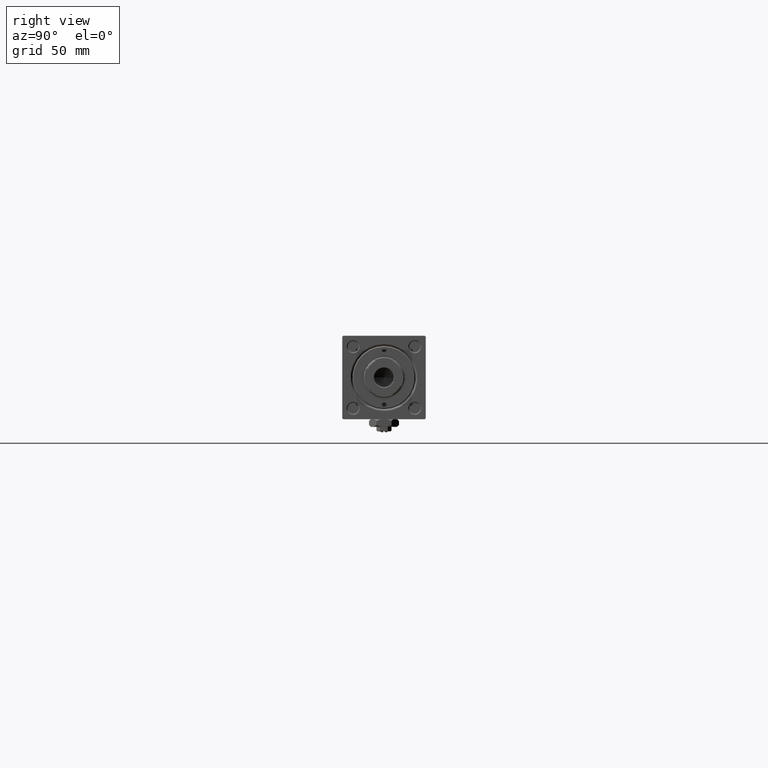
[diagram: clean part render]
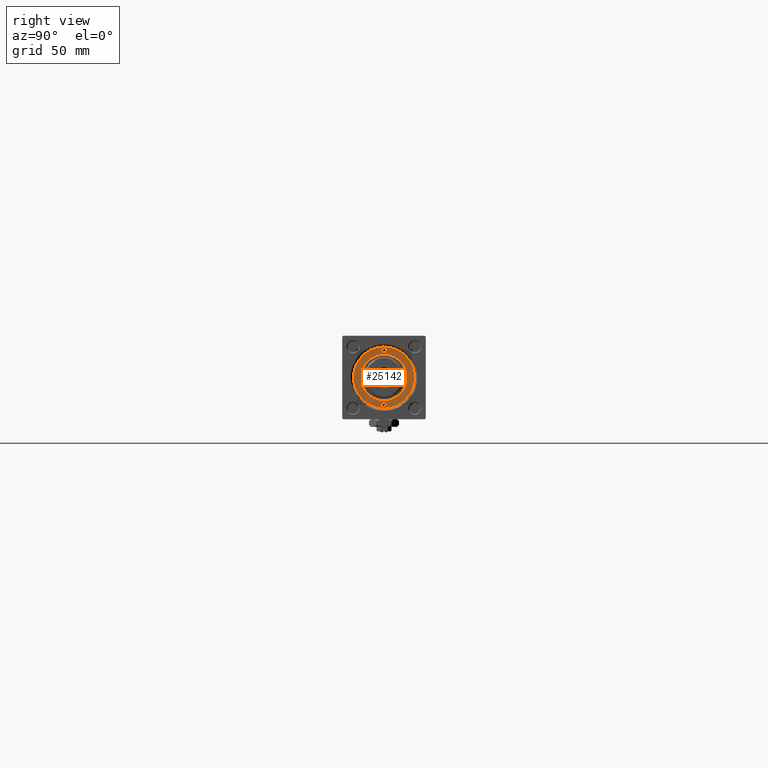
[diagram: same view with one face highlighted and labeled with its STEP entity id]
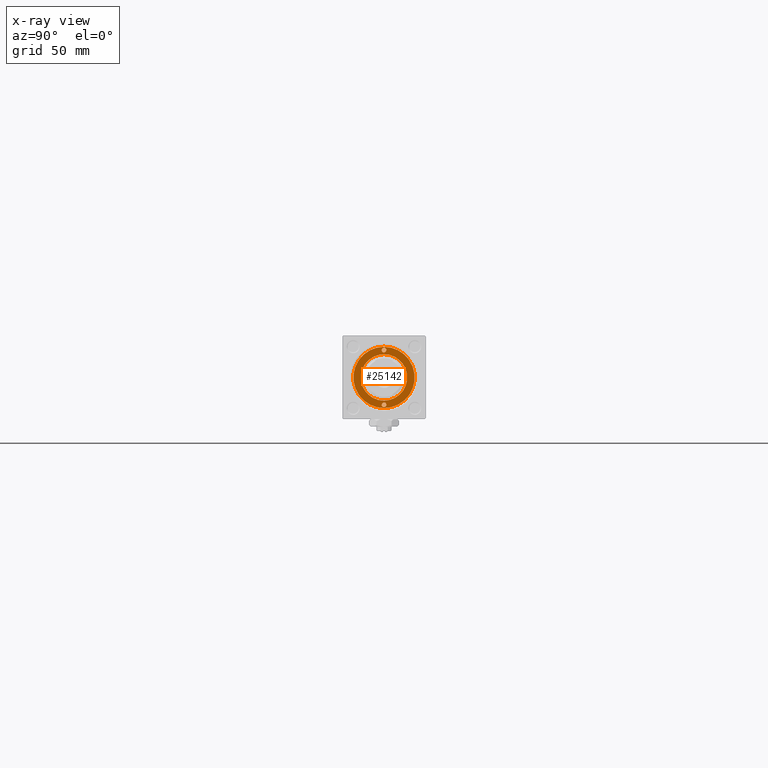
[diagram: x-ray of the same camera — body ghosted, the highlighted face saturated]
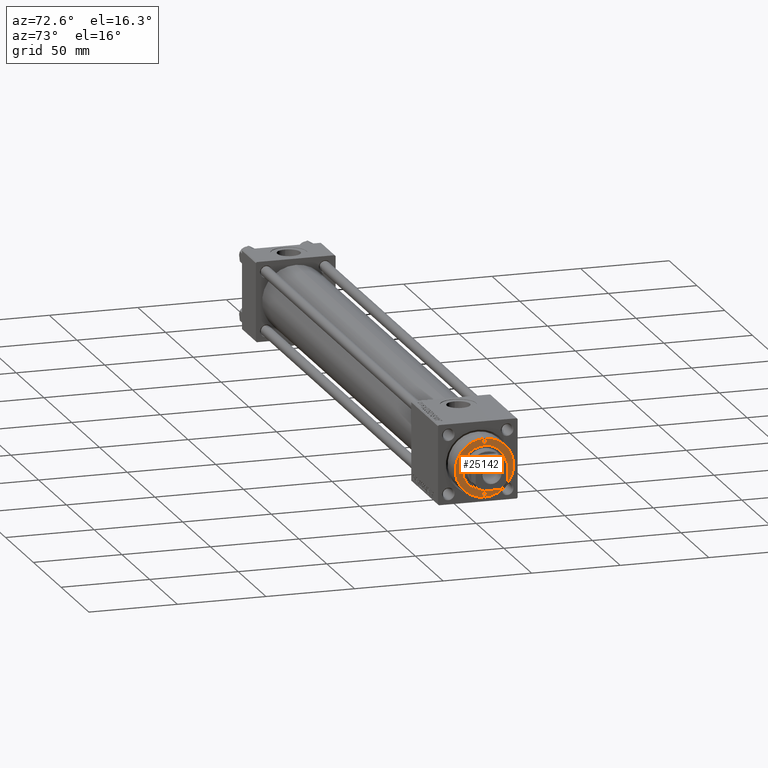
[diagram: same view with one face highlighted and labeled with its STEP entity id]
A machine part, right view. The second image highlights one B-rep face of the part: STEP entity #25142.
The next image is the same camera in x-ray: the body ghosted, the highlighted face saturated — about 0% of this face is hidden behind the body in this view.
A second angle (auxiliary view) of the same face is appended — the face is thin or edge-on in the first view.
In plain terms, the highlighted planar face has unit normal (1, 0, 0).
Its self-contained STEP definition (entity closure, byte-faithful):
#73 = CARTESIAN_POINT ( 'NONE',  ( -14.75000000000000000, 0.000000000000000000, 40.70000000000000284 ) ) ;
#2096 = CARTESIAN_POINT ( 'NONE',  ( 14.75000000000000000, 0.000000000000000000, 40.70000000000000284 ) ) ;
#2787 = CIRCLE ( 'NONE', #38217, 16.49999999999999289 ) ;
#2788 = EDGE_CURVE ( 'NONE', #33851, #29347, #13720, .T. ) ;
#3006 = EDGE_LOOP ( 'NONE', ( #29511, #47932 ) ) ;
#3411 = CIRCLE ( 'NONE', #8622, 12.50000000000000000 ) ;
#3491 = AXIS2_PLACEMENT_3D ( 'NONE', #9402, #35104, #29720 ) ;
#4316 = EDGE_CURVE ( 'NONE', #35325, #26125, #3411, .T. ) ;
#4332 = EDGE_CURVE ( 'NONE', #48650, #21894, #29367, .T. ) ;
#4599 = ORIENTED_EDGE ( 'NONE', *, *, #2788, .F. ) ;
#5380 = EDGE_LOOP ( 'NONE', ( #16659, #27107 ) ) ;
#5666 = ORIENTED_EDGE ( 'NONE', *, *, #28046, .T. ) ;
#5991 = EDGE_CURVE ( 'NONE', #17787, #49670, #20735, .T. ) ;
#8366 = DIRECTION ( 'NONE',  ( -0.000000000000000000, -0.000000000000000000, 1.000000000000000000 ) ) ;
#8622 = AXIS2_PLACEMENT_3D ( 'NONE', #29291, #41213, #16276 ) ;
#9402 = CARTESIAN_POINT ( 'NONE',  ( 0.000000000000000000, 0.000000000000000000, 40.70000000000000284 ) ) ;
#11274 = EDGE_LOOP ( 'NONE', ( #4599, #30611 ) ) ;
#12061 = PLANE ( 'NONE',  #33778 ) ;
#12643 = CARTESIAN_POINT ( 'NONE',  ( 0.000000000000000000, 0.000000000000000000, 40.70000000000000284 ) ) ;
#13720 = CIRCLE ( 'NONE', #18877, 1.250000000000001110 ) ;
#15175 = EDGE_CURVE ( 'NONE', #29347, #33851, #48640, .T. ) ;
#15443 = DIRECTION ( 'NONE',  ( 0.000000000000000000, 0.000000000000000000, 1.000000000000000000 ) ) ;
#16276 = DIRECTION ( 'NONE',  ( 1.000000000000000000, 0.000000000000000000, 0.000000000000000000 ) ) ;
#16659 = ORIENTED_EDGE ( 'NONE', *, *, #36934, .F. ) ;
#17013 = DIRECTION ( 'NONE',  ( 1.000000000000000000, 0.000000000000000000, 0.000000000000000000 ) ) ;
#17787 = VERTEX_POINT ( 'NONE', #35042 ) ;
#17837 = CARTESIAN_POINT ( 'NONE',  ( -12.50000000000000000, 1.530808498934191521E-15, 40.70000000000000284 ) ) ;
#18114 = AXIS2_PLACEMENT_3D ( 'NONE', #73, #33088, #29025 ) ;
#18637 = CARTESIAN_POINT ( 'NONE',  ( 12.50000000000000000, 0.000000000000000000, 40.70000000000000284 ) ) ;
#18877 = AXIS2_PLACEMENT_3D ( 'NONE', #2096, #51616, #52148 ) ;
#19131 = CARTESIAN_POINT ( 'NONE',  ( 13.49999999999999822, 1.530808498934192803E-16, 40.70000000000000284 ) ) ;
#19387 = DIRECTION ( 'NONE',  ( 1.000000000000000000, 0.000000000000000000, -0.000000000000000000 ) ) ;
#20735 = CIRCLE ( 'NONE', #3491, 16.49999999999999289 ) ;
#21894 = VERTEX_POINT ( 'NONE', #47601 ) ;
#24887 = ORIENTED_EDGE ( 'NONE', *, *, #5991, .T. ) ;
#25142 = ADVANCED_FACE ( 'NONE', ( #53475, #27501, #28042, #41050 ), #12061, .T. ) ;
#25677 = CARTESIAN_POINT ( 'NONE',  ( 14.75000000000000000, 0.000000000000000000, 40.70000000000000284 ) ) ;
#26125 = VERTEX_POINT ( 'NONE', #18637 ) ;
#27107 = ORIENTED_EDGE ( 'NONE', *, *, #4332, .F. ) ;
#27501 = FACE_BOUND ( 'NONE', #11274, .T. ) ;
#28042 = FACE_BOUND ( 'NONE', #3006, .T. ) ;
#28046 = EDGE_CURVE ( 'NONE', #49670, #17787, #2787, .T. ) ;
#28300 = DIRECTION ( 'NONE',  ( 0.000000000000000000, 0.000000000000000000, 1.000000000000000000 ) ) ;
#29025 = DIRECTION ( 'NONE',  ( 1.000000000000000000, 0.000000000000000000, 0.000000000000000000 ) ) ;
#29162 = DIRECTION ( 'NONE',  ( 1.000000000000000000, 0.000000000000000000, 0.000000000000000000 ) ) ;
#29291 = CARTESIAN_POINT ( 'NONE',  ( 0.000000000000000000, 0.000000000000000000, 40.70000000000000284 ) ) ;
#29347 = VERTEX_POINT ( 'NONE', #19131 ) ;
#29367 = CIRCLE ( 'NONE', #18114, 1.249999999999999334 ) ;
#29489 = DIRECTION ( 'NONE',  ( 1.000000000000000000, 0.000000000000000000, 0.000000000000000000 ) ) ;
#29511 = ORIENTED_EDGE ( 'NONE', *, *, #38541, .F. ) ;
#29720 = DIRECTION ( 'NONE',  ( 1.000000000000000000, 0.000000000000000000, 0.000000000000000000 ) ) ;
#29831 = CARTESIAN_POINT ( 'NONE',  ( 16.49999999999999289, 2.051283388571816493E-15, 40.70000000000000284 ) ) ;
#30611 = ORIENTED_EDGE ( 'NONE', *, *, #15175, .F. ) ;
#32914 = CARTESIAN_POINT ( 'NONE',  ( 0.000000000000000000, 0.000000000000000000, 40.70000000000000284 ) ) ;
#33088 = DIRECTION ( 'NONE',  ( -0.000000000000000000, -0.000000000000000000, 1.000000000000000000 ) ) ;
#33778 = AXIS2_PLACEMENT_3D ( 'NONE', #32914, #28300, #19387 ) ;
#33827 = CARTESIAN_POINT ( 'NONE',  ( 16.00000000000000000, 0.000000000000000000, 40.70000000000000284 ) ) ;
#33851 = VERTEX_POINT ( 'NONE', #33827 ) ;
#35042 = CARTESIAN_POINT ( 'NONE',  ( -16.49999999999999289, 0.000000000000000000, 40.70000000000000284 ) ) ;
#35104 = DIRECTION ( 'NONE',  ( 0.000000000000000000, 0.000000000000000000, 1.000000000000000000 ) ) ;
#35325 = VERTEX_POINT ( 'NONE', #17837 ) ;
#36538 = AXIS2_PLACEMENT_3D ( 'NONE', #25677, #50858, #29489 ) ;
#36934 = EDGE_CURVE ( 'NONE', #21894, #48650, #39293, .T. ) ;
#37599 = CARTESIAN_POINT ( 'NONE',  ( -14.75000000000000000, 0.000000000000000000, 40.70000000000000284 ) ) ;
#38217 = AXIS2_PLACEMENT_3D ( 'NONE', #52295, #15443, #52816 ) ;
#38541 = EDGE_CURVE ( 'NONE', #26125, #35325, #52308, .T. ) ;
#39293 = CIRCLE ( 'NONE', #44467, 1.249999999999999334 ) ;
#41050 = FACE_OUTER_BOUND ( 'NONE', #47146, .T. ) ;
#41213 = DIRECTION ( 'NONE',  ( 0.000000000000000000, 0.000000000000000000, 1.000000000000000000 ) ) ;
#41626 = DIRECTION ( 'NONE',  ( 0.000000000000000000, 0.000000000000000000, 1.000000000000000000 ) ) ;
#43699 = AXIS2_PLACEMENT_3D ( 'NONE', #12643, #41626, #29162 ) ;
#44467 = AXIS2_PLACEMENT_3D ( 'NONE', #37599, #8366, #17013 ) ;
#47146 = EDGE_LOOP ( 'NONE', ( #24887, #5666 ) ) ;
#47601 = CARTESIAN_POINT ( 'NONE',  ( -13.50000000000000000, 0.000000000000000000, 40.70000000000000284 ) ) ;
#47932 = ORIENTED_EDGE ( 'NONE', *, *, #4316, .F. ) ;
#48640 = CIRCLE ( 'NONE', #36538, 1.250000000000001110 ) ;
#48650 = VERTEX_POINT ( 'NONE', #52504 ) ;
#49670 = VERTEX_POINT ( 'NONE', #29831 ) ;
#50858 = DIRECTION ( 'NONE',  ( -0.000000000000000000, -0.000000000000000000, 1.000000000000000000 ) ) ;
#51616 = DIRECTION ( 'NONE',  ( -0.000000000000000000, -0.000000000000000000, 1.000000000000000000 ) ) ;
#52148 = DIRECTION ( 'NONE',  ( 1.000000000000000000, 0.000000000000000000, 0.000000000000000000 ) ) ;
#52295 = CARTESIAN_POINT ( 'NONE',  ( 0.000000000000000000, 0.000000000000000000, 40.70000000000000284 ) ) ;
#52308 = CIRCLE ( 'NONE', #43699, 12.50000000000000000 ) ;
#52504 = CARTESIAN_POINT ( 'NONE',  ( -16.00000000000000000, 1.530808498934190585E-16, 40.70000000000000284 ) ) ;
#52816 = DIRECTION ( 'NONE',  ( 1.000000000000000000, 0.000000000000000000, 0.000000000000000000 ) ) ;
#53475 = FACE_BOUND ( 'NONE', #5380, .T. ) ;